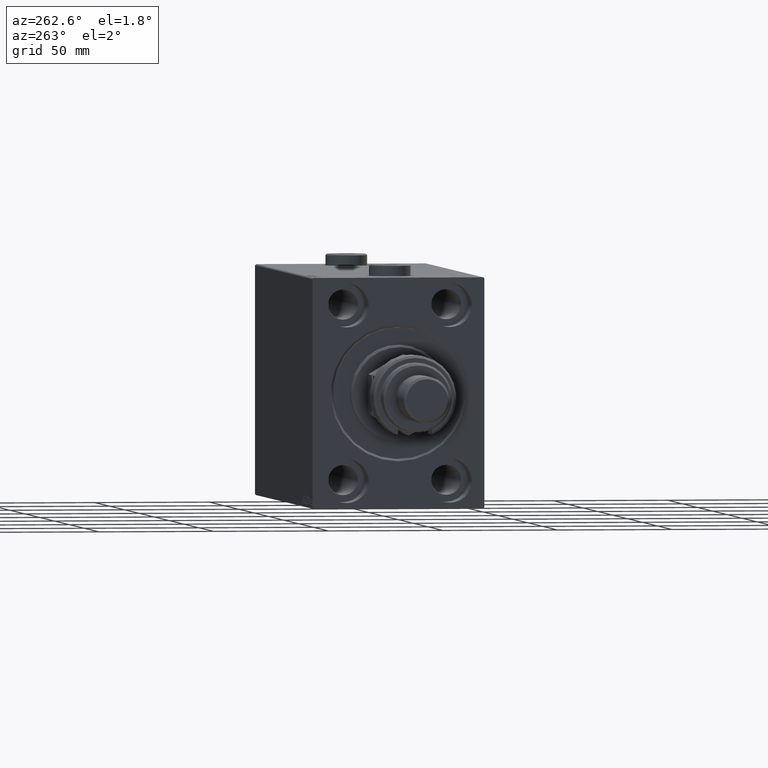
[diagram: clean part render]
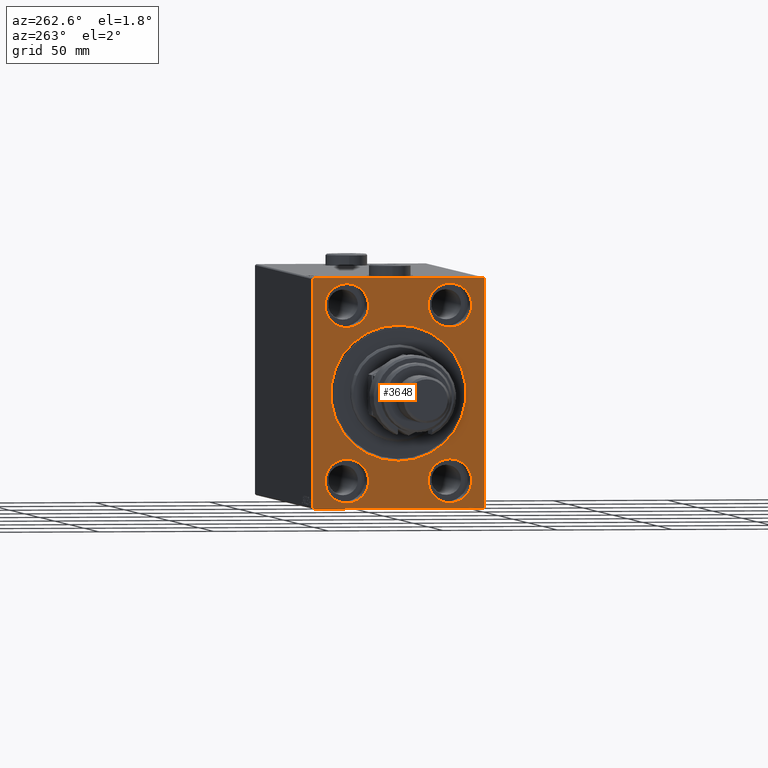
[diagram: same view with one face highlighted and labeled with its STEP entity id]
A machine part, auxiliary view. The second image highlights one B-rep face of the part: STEP entity #3648.
In plain terms, the highlighted planar face has unit normal (1, 0, 0).
Its self-contained STEP definition (entity closure, byte-faithful):
#386 = DIRECTION ( 'NONE',  ( -1.000000000000000000, 0.000000000000000000, 0.000000000000000000 ) ) ;
#388 = CARTESIAN_POINT ( 'NONE',  ( 0.000000000000000000, -37.50000000000000711, 49.49999999999996447 ) ) ;
#650 = CARTESIAN_POINT ( 'NONE',  ( 0.000000000000000000, 22.49999999999999645, -28.49999999999998934 ) ) ;
#686 = ORIENTED_EDGE ( 'NONE', *, *, #45843, .T. ) ;
#1055 = ORIENTED_EDGE ( 'NONE', *, *, #5598, .F. ) ;
#1369 = CIRCLE ( 'NONE', #4521, 9.500000000000001776 ) ;
#1527 = CARTESIAN_POINT ( 'NONE',  ( 0.000000000000000000, -36.99999999999997868, 49.99999999999999289 ) ) ;
#1733 = CARTESIAN_POINT ( 'NONE',  ( 0.000000000000000000, -37.50000000000000711, 49.49999999999996447 ) ) ;
#1864 = EDGE_LOOP ( 'NONE', ( #19953, #29606 ) ) ;
#1902 = FACE_BOUND ( 'NONE', #12476, .T. ) ;
#2558 = DIRECTION ( 'NONE',  ( 0.000000000000000000, -0.7071067811865474617, -0.7071067811865474617 ) ) ;
#2627 = DIRECTION ( 'NONE',  ( 1.000000000000000000, 0.000000000000000000, 0.000000000000000000 ) ) ;
#2781 = CIRCLE ( 'NONE', #23769, 9.500000000000001776 ) ;
#3270 = EDGE_CURVE ( 'NONE', #29675, #25532, #1369, .T. ) ;
#3648 = ADVANCED_FACE ( 'NONE', ( #10189, #20646, #39646, #35977, #1902, #32076 ), #6521, .F. ) ;
#3748 = AXIS2_PLACEMENT_3D ( 'NONE', #4140, #18994, #33823 ) ;
#4140 = CARTESIAN_POINT ( 'NONE',  ( 0.000000000000000000, -22.50000000000000711, -37.99999999999999289 ) ) ;
#4219 = EDGE_CURVE ( 'NONE', #42560, #46577, #17726, .T. ) ;
#4259 = ORIENTED_EDGE ( 'NONE', *, *, #40527, .F. ) ;
#4342 = LINE ( 'NONE', #30840, #20152 ) ;
#4465 = AXIS2_PLACEMENT_3D ( 'NONE', #19525, #8564, #26823 ) ;
#4521 = AXIS2_PLACEMENT_3D ( 'NONE', #36033, #21190, #36271 ) ;
#4636 = ORIENTED_EDGE ( 'NONE', *, *, #13447, .T. ) ;
#5374 = CARTESIAN_POINT ( 'NONE',  ( 0.000000000000000000, 22.49999999999999645, -37.99999999999999289 ) ) ;
#5391 = CARTESIAN_POINT ( 'NONE',  ( 0.000000000000000000, -37.50000000000000711, -50.00000000000000711 ) ) ;
#5598 = EDGE_CURVE ( 'NONE', #25532, #29675, #5921, .T. ) ;
#5632 = DIRECTION ( 'NONE',  ( -1.000000000000000000, 0.000000000000000000, 0.000000000000000000 ) ) ;
#5921 = CIRCLE ( 'NONE', #19721, 9.500000000000001776 ) ;
#5938 = LINE ( 'NONE', #46867, #36505 ) ;
#6099 = DIRECTION ( 'NONE',  ( 0.000000000000000000, 0.000000000000000000, 1.000000000000000000 ) ) ;
#6521 = PLANE ( 'NONE',  #9974 ) ;
#6563 = LINE ( 'NONE', #21414, #18720 ) ;
#6833 = CIRCLE ( 'NONE', #11498, 9.500000000000001776 ) ;
#7064 = EDGE_CURVE ( 'NONE', #28276, #45935, #2781, .T. ) ;
#8038 = EDGE_CURVE ( 'NONE', #34663, #34206, #8282, .T. ) ;
#8215 = AXIS2_PLACEMENT_3D ( 'NONE', #29767, #37785, #40730 ) ;
#8282 = CIRCLE ( 'NONE', #35481, 9.500000000000001776 ) ;
#8564 = DIRECTION ( 'NONE',  ( -1.000000000000000000, 0.000000000000000000, 0.000000000000000000 ) ) ;
#9301 = DIRECTION ( 'NONE',  ( 0.000000000000000000, 1.000000000000000000, 9.251858538542970348E-17 ) ) ;
#9974 = AXIS2_PLACEMENT_3D ( 'NONE', #20408, #2627, #25019 ) ;
#10093 = EDGE_CURVE ( 'NONE', #21573, #45276, #20891, .T. ) ;
#10189 = FACE_BOUND ( 'NONE', #46113, .T. ) ;
#10446 = DIRECTION ( 'NONE',  ( 1.000000000000000000, 0.000000000000000000, 0.000000000000000000 ) ) ;
#10499 = ORIENTED_EDGE ( 'NONE', *, *, #4219, .F. ) ;
#10603 = CARTESIAN_POINT ( 'NONE',  ( 0.000000000000000000, -22.49999999999999645, 28.49999999999998934 ) ) ;
#10705 = DIRECTION ( 'NONE',  ( 0.000000000000000000, -1.000000000000000000, -1.850371707708594316E-16 ) ) ;
#10763 = ORIENTED_EDGE ( 'NONE', *, *, #14525, .F. ) ;
#10801 = ORIENTED_EDGE ( 'NONE', *, *, #10093, .F. ) ;
#10805 = EDGE_CURVE ( 'NONE', #46577, #42560, #46495, .T. ) ;
#11498 = AXIS2_PLACEMENT_3D ( 'NONE', #5374, #47022, #6099 ) ;
#11776 = EDGE_LOOP ( 'NONE', ( #1055, #25603 ) ) ;
#12476 = EDGE_LOOP ( 'NONE', ( #43136, #10499 ) ) ;
#12860 = CARTESIAN_POINT ( 'NONE',  ( 0.000000000000000000, -22.49999999999999645, 47.49999999999999289 ) ) ;
#13235 = ORIENTED_EDGE ( 'NONE', *, *, #36020, .T. ) ;
#13447 = EDGE_CURVE ( 'NONE', #28696, #34147, #48094, .T. ) ;
#13752 = CARTESIAN_POINT ( 'NONE',  ( 0.000000000000000000, 36.99999999999999289, 50.00000000000000711 ) ) ;
#13822 = VERTEX_POINT ( 'NONE', #38013 ) ;
#13887 = VECTOR ( 'NONE', #2558, 1000.000000000000114 ) ;
#14525 = EDGE_CURVE ( 'NONE', #35389, #34147, #4342, .T. ) ;
#14703 = DIRECTION ( 'NONE',  ( -0.000000000000000000, -0.7071067811865474617, 0.7071067811865474617 ) ) ;
#14996 = DIRECTION ( 'NONE',  ( 0.000000000000000000, 0.000000000000000000, 1.000000000000000000 ) ) ;
#17713 = VECTOR ( 'NONE', #20238, 1000.000000000000114 ) ;
#17726 = CIRCLE ( 'NONE', #3748, 9.500000000000001776 ) ;
#17907 = CARTESIAN_POINT ( 'NONE',  ( 0.000000000000000000, 36.99999999999999289, 50.00000000000000711 ) ) ;
#17952 = EDGE_LOOP ( 'NONE', ( #10801, #22290, #27337, #4636, #10763, #44819, #24501, #686 ) ) ;
#18513 = DIRECTION ( 'NONE',  ( -1.000000000000000000, 0.000000000000000000, 0.000000000000000000 ) ) ;
#18604 = EDGE_CURVE ( 'NONE', #28696, #30940, #6563, .T. ) ;
#18720 = VECTOR ( 'NONE', #10705, 1000.000000000000000 ) ;
#18896 = CARTESIAN_POINT ( 'NONE',  ( 0.000000000000000000, -22.49999999999999645, 37.99999999999999289 ) ) ;
#18994 = DIRECTION ( 'NONE',  ( -1.000000000000000000, 0.000000000000000000, 0.000000000000000000 ) ) ;
#19525 = CARTESIAN_POINT ( 'NONE',  ( 0.000000000000000000, 22.50000000000000355, 37.99999999999999289 ) ) ;
#19721 = AXIS2_PLACEMENT_3D ( 'NONE', #18896, #386, #14996 ) ;
#19953 = ORIENTED_EDGE ( 'NONE', *, *, #7064, .F. ) ;
#19994 = DIRECTION ( 'NONE',  ( 0.000000000000000000, 0.000000000000000000, 1.000000000000000000 ) ) ;
#20152 = VECTOR ( 'NONE', #45715, 1000.000000000000000 ) ;
#20238 = DIRECTION ( 'NONE',  ( -0.000000000000000000, 0.7071067811865474617, 0.7071067811865474617 ) ) ;
#20408 = CARTESIAN_POINT ( 'NONE',  ( 0.000000000000000000, 0.000000000000000000, 0.000000000000000000 ) ) ;
#20485 = CARTESIAN_POINT ( 'NONE',  ( 0.000000000000000000, 22.50000000000000355, 37.99999999999999289 ) ) ;
#20646 = FACE_BOUND ( 'NONE', #40544, .T. ) ;
#20891 = LINE ( 'NONE', #46951, #44894 ) ;
#21190 = DIRECTION ( 'NONE',  ( -1.000000000000000000, 0.000000000000000000, 0.000000000000000000 ) ) ;
#21414 = CARTESIAN_POINT ( 'NONE',  ( 0.000000000000000000, 37.49999999999999289, 50.00000000000000711 ) ) ;
#21573 = VERTEX_POINT ( 'NONE', #388 ) ;
#21792 = LINE ( 'NONE', #47609, #13887 ) ;
#22290 = ORIENTED_EDGE ( 'NONE', *, *, #41186, .T. ) ;
#22675 = AXIS2_PLACEMENT_3D ( 'NONE', #29409, #10446, #43548 ) ;
#23769 = AXIS2_PLACEMENT_3D ( 'NONE', #20485, #5632, #19994 ) ;
#24188 = EDGE_CURVE ( 'NONE', #13822, #36538, #30413, .T. ) ;
#24501 = ORIENTED_EDGE ( 'NONE', *, *, #24900, .F. ) ;
#24900 = EDGE_CURVE ( 'NONE', #44779, #31060, #27302, .T. ) ;
#25019 = DIRECTION ( 'NONE',  ( 0.000000000000000000, 0.000000000000000000, -1.000000000000000000 ) ) ;
#25532 = VERTEX_POINT ( 'NONE', #12860 ) ;
#25603 = ORIENTED_EDGE ( 'NONE', *, *, #3270, .F. ) ;
#25702 = CARTESIAN_POINT ( 'NONE',  ( 0.000000000000000000, 3.612708057484688448E-15, -29.49999999999997513 ) ) ;
#25792 = VECTOR ( 'NONE', #9301, 1000.000000000000000 ) ;
#25802 = CARTESIAN_POINT ( 'NONE',  ( 0.000000000000000000, 22.50000000000000355, 47.49999999999999289 ) ) ;
#26823 = DIRECTION ( 'NONE',  ( 0.000000000000000000, 0.000000000000000000, 1.000000000000000000 ) ) ;
#27302 = LINE ( 'NONE', #5391, #25792 ) ;
#27337 = ORIENTED_EDGE ( 'NONE', *, *, #18604, .F. ) ;
#28276 = VERTEX_POINT ( 'NONE', #25802 ) ;
#28696 = VERTEX_POINT ( 'NONE', #17907 ) ;
#29409 = CARTESIAN_POINT ( 'NONE',  ( 0.000000000000000000, 0.000000000000000000, 0.000000000000000000 ) ) ;
#29606 = ORIENTED_EDGE ( 'NONE', *, *, #41343, .F. ) ;
#29675 = VERTEX_POINT ( 'NONE', #10603 ) ;
#29767 = CARTESIAN_POINT ( 'NONE',  ( 0.000000000000000000, 0.000000000000000000, 0.000000000000000000 ) ) ;
#29956 = ORIENTED_EDGE ( 'NONE', *, *, #8038, .F. ) ;
#30147 = CIRCLE ( 'NONE', #4465, 9.500000000000001776 ) ;
#30413 = CIRCLE ( 'NONE', #22675, 29.49999999999997513 ) ;
#30439 = DIRECTION ( 'NONE',  ( -1.000000000000000000, 0.000000000000000000, 0.000000000000000000 ) ) ;
#30840 = CARTESIAN_POINT ( 'NONE',  ( 0.000000000000000000, 37.50000000000000711, -50.00000000000000000 ) ) ;
#30940 = VERTEX_POINT ( 'NONE', #1527 ) ;
#31060 = VERTEX_POINT ( 'NONE', #31699 ) ;
#31585 = DIRECTION ( 'NONE',  ( 0.000000000000000000, 0.000000000000000000, -1.000000000000000000 ) ) ;
#31699 = CARTESIAN_POINT ( 'NONE',  ( 0.000000000000000000, 37.00000000000000711, -50.00000000000000000 ) ) ;
#31790 = ORIENTED_EDGE ( 'NONE', *, *, #24188, .T. ) ;
#32076 = FACE_OUTER_BOUND ( 'NONE', #17952, .T. ) ;
#32238 = DIRECTION ( 'NONE',  ( -0.000000000000000000, 0.7071067811865425767, -0.7071067811865525687 ) ) ;
#33555 = CARTESIAN_POINT ( 'NONE',  ( 0.000000000000000000, -22.50000000000000711, -28.49999999999998934 ) ) ;
#33823 = DIRECTION ( 'NONE',  ( 0.000000000000000000, 0.000000000000000000, 1.000000000000000000 ) ) ;
#34147 = VERTEX_POINT ( 'NONE', #48151 ) ;
#34206 = VERTEX_POINT ( 'NONE', #650 ) ;
#34663 = VERTEX_POINT ( 'NONE', #40419 ) ;
#35389 = VERTEX_POINT ( 'NONE', #36825 ) ;
#35481 = AXIS2_PLACEMENT_3D ( 'NONE', #41409, #30439, #41168 ) ;
#35650 = VECTOR ( 'NONE', #32238, 999.9999999999998863 ) ;
#35977 = FACE_BOUND ( 'NONE', #1864, .T. ) ;
#36020 = EDGE_CURVE ( 'NONE', #36538, #13822, #40089, .T. ) ;
#36033 = CARTESIAN_POINT ( 'NONE',  ( 0.000000000000000000, -22.49999999999999645, 37.99999999999999289 ) ) ;
#36271 = DIRECTION ( 'NONE',  ( 0.000000000000000000, 0.000000000000000000, 1.000000000000000000 ) ) ;
#36505 = VECTOR ( 'NONE', #14703, 1000.000000000000114 ) ;
#36538 = VERTEX_POINT ( 'NONE', #25702 ) ;
#36619 = CARTESIAN_POINT ( 'NONE',  ( 0.000000000000000000, 22.50000000000000355, 28.49999999999998934 ) ) ;
#36825 = CARTESIAN_POINT ( 'NONE',  ( 0.000000000000000000, 37.50000000000000711, -49.50000000000000000 ) ) ;
#37157 = AXIS2_PLACEMENT_3D ( 'NONE', #45044, #18513, #37247 ) ;
#37247 = DIRECTION ( 'NONE',  ( 0.000000000000000000, 0.000000000000000000, 1.000000000000000000 ) ) ;
#37785 = DIRECTION ( 'NONE',  ( 1.000000000000000000, 0.000000000000000000, 0.000000000000000000 ) ) ;
#38013 = CARTESIAN_POINT ( 'NONE',  ( 0.000000000000000000, 0.000000000000000000, 29.49999999999997513 ) ) ;
#38028 = LINE ( 'NONE', #1733, #17713 ) ;
#39646 = FACE_BOUND ( 'NONE', #11776, .T. ) ;
#40089 = CIRCLE ( 'NONE', #8215, 29.49999999999997513 ) ;
#40419 = CARTESIAN_POINT ( 'NONE',  ( 0.000000000000000000, 22.49999999999999645, -47.49999999999999289 ) ) ;
#40527 = EDGE_CURVE ( 'NONE', #34206, #34663, #6833, .T. ) ;
#40544 = EDGE_LOOP ( 'NONE', ( #4259, #29956 ) ) ;
#40730 = DIRECTION ( 'NONE',  ( 0.000000000000000000, 0.000000000000000000, -1.000000000000000000 ) ) ;
#41168 = DIRECTION ( 'NONE',  ( 0.000000000000000000, 0.000000000000000000, 1.000000000000000000 ) ) ;
#41186 = EDGE_CURVE ( 'NONE', #21573, #30940, #38028, .T. ) ;
#41343 = EDGE_CURVE ( 'NONE', #45935, #28276, #30147, .T. ) ;
#41409 = CARTESIAN_POINT ( 'NONE',  ( 0.000000000000000000, 22.49999999999999645, -37.99999999999999289 ) ) ;
#42560 = VERTEX_POINT ( 'NONE', #42620 ) ;
#42620 = CARTESIAN_POINT ( 'NONE',  ( 0.000000000000000000, -22.50000000000000711, -47.49999999999999289 ) ) ;
#43136 = ORIENTED_EDGE ( 'NONE', *, *, #10805, .F. ) ;
#43266 = EDGE_CURVE ( 'NONE', #35389, #31060, #21792, .T. ) ;
#43548 = DIRECTION ( 'NONE',  ( 0.000000000000000000, 0.000000000000000000, -1.000000000000000000 ) ) ;
#44779 = VERTEX_POINT ( 'NONE', #44947 ) ;
#44819 = ORIENTED_EDGE ( 'NONE', *, *, #43266, .T. ) ;
#44894 = VECTOR ( 'NONE', #31585, 1000.000000000000000 ) ;
#44947 = CARTESIAN_POINT ( 'NONE',  ( 0.000000000000000000, -37.00000000000000711, -50.00000000000000711 ) ) ;
#45044 = CARTESIAN_POINT ( 'NONE',  ( 0.000000000000000000, -22.50000000000000711, -37.99999999999999289 ) ) ;
#45276 = VERTEX_POINT ( 'NONE', #45312 ) ;
#45312 = CARTESIAN_POINT ( 'NONE',  ( 0.000000000000000000, -37.50000000000000711, -49.50000000000000711 ) ) ;
#45715 = DIRECTION ( 'NONE',  ( 0.000000000000000000, -1.387778780781445676E-16, 1.000000000000000000 ) ) ;
#45843 = EDGE_CURVE ( 'NONE', #44779, #45276, #5938, .T. ) ;
#45935 = VERTEX_POINT ( 'NONE', #36619 ) ;
#46113 = EDGE_LOOP ( 'NONE', ( #31790, #13235 ) ) ;
#46495 = CIRCLE ( 'NONE', #37157, 9.500000000000001776 ) ;
#46577 = VERTEX_POINT ( 'NONE', #33555 ) ;
#46867 = CARTESIAN_POINT ( 'NONE',  ( 0.000000000000000000, -37.00000000000000711, -50.00000000000000711 ) ) ;
#46951 = CARTESIAN_POINT ( 'NONE',  ( 0.000000000000000000, -37.50000000000000711, 49.99999999999999289 ) ) ;
#47022 = DIRECTION ( 'NONE',  ( -1.000000000000000000, 0.000000000000000000, 0.000000000000000000 ) ) ;
#47609 = CARTESIAN_POINT ( 'NONE',  ( 0.000000000000000000, 37.50000000000000711, -49.50000000000000000 ) ) ;
#48094 = LINE ( 'NONE', #13752, #35650 ) ;
#48151 = CARTESIAN_POINT ( 'NONE',  ( 0.000000000000000000, 37.49999999999999289, 49.50000000000000000 ) ) ;